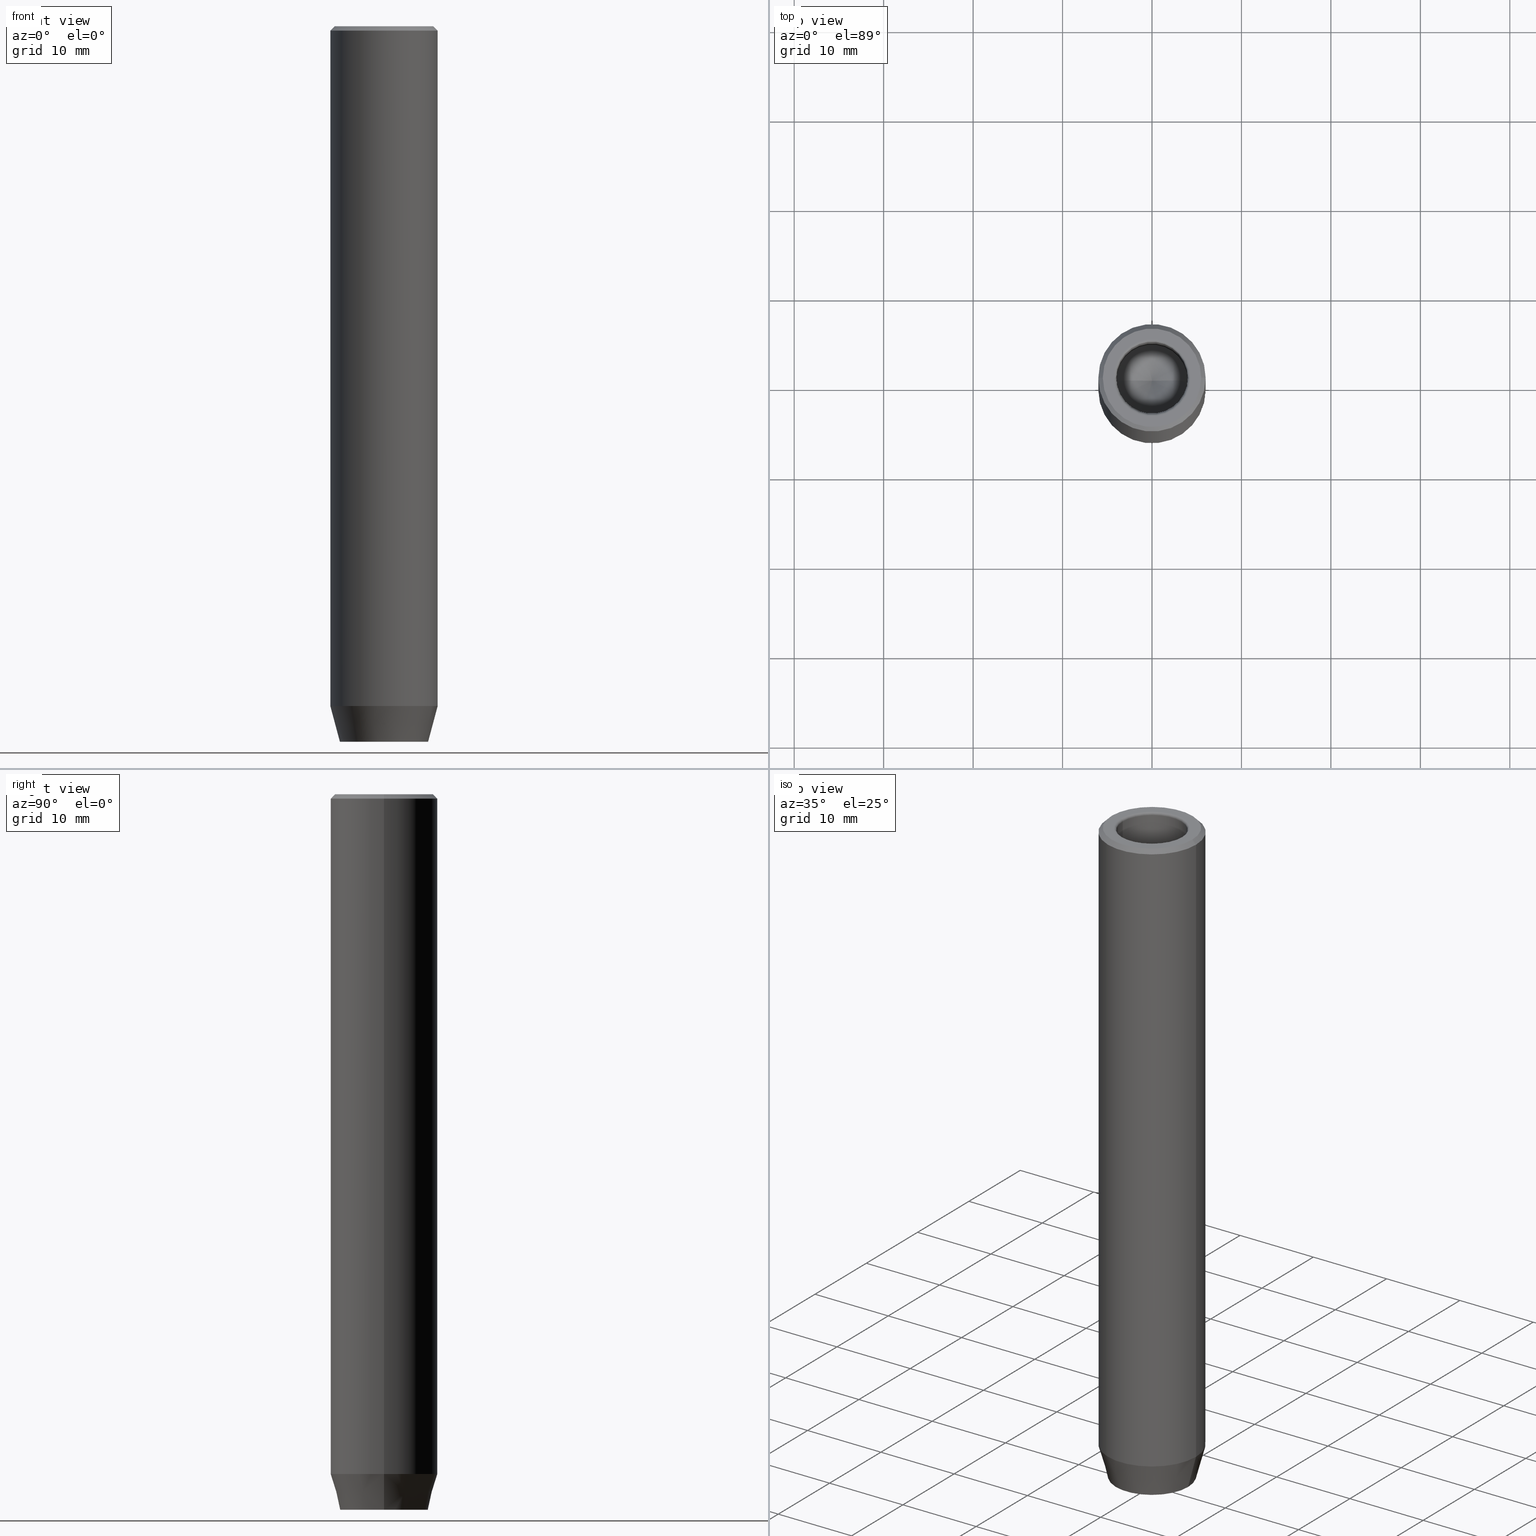
[diagram: canonical four-view strip — front | top / right | iso, engineering-drawing reading convention]
A machine part, canonical four-view strip (front | top / right | iso — engineering-drawing reading convention). The complete STEP part file that produces these views, byte-faithful:
ISO-10303-21;
HEADER;
FILE_DESCRIPTION (( 'STEP AP203' ),
    '1' );
FILE_NAME ('ed3b.STEP',
    '2024-01-02T19:12:21',
    ( '' ),
    ( '' ),
    'SwSTEP 2.0',
    'SolidWorks 2019',
    '' );
FILE_SCHEMA (( 'CONFIG_CONTROL_DESIGN' ));
ENDSEC;

DATA;
#1 = ADVANCED_FACE ( 'NONE', ( #124 ), #377, .F. ) ;
#2 = FACE_OUTER_BOUND ( 'NONE', #328, .T. ) ;
#3 = PLANE ( 'NONE',  #217 ) ;
#4 = ORIENTED_EDGE ( 'NONE', *, *, #563, .F. ) ;
#5 = AXIS2_PLACEMENT_3D ( 'NONE', #385, #585, #139 ) ;
#6 = DIRECTION ( 'NONE',  ( 0.000000000000000000, -1.000000000000000000, 0.000000000000000000 ) ) ;
#7 = VECTOR ( 'NONE', #312, 1000.000000000000000 ) ;
#8 = SHAPE_DEFINITION_REPRESENTATION ( #172, #609 ) ;
#9 = ORIENTED_EDGE ( 'NONE', *, *, #520, .T. ) ;
#10 = EDGE_CURVE ( 'NONE', #222, #114, #171, .T. ) ;
#11 = DIRECTION ( 'NONE',  ( 1.000000000000000000, 0.000000000000000000, 0.000000000000000000 ) ) ;
#12 = ORIENTED_EDGE ( 'NONE', *, *, #302, .F. ) ;
#13 = EDGE_CURVE ( 'NONE', #233, #463, #381, .T. ) ;
#14 = CARTESIAN_POINT ( 'NONE',  ( -4.299999999999996270, 5.265981236333614526E-16, -0.2999999999999999889 ) ) ;
#15 = VERTEX_POINT ( 'NONE', #477 ) ;
#16 = CIRCLE ( 'NONE', #324, 3.999999999999996447 ) ;
#17 = ORIENTED_EDGE ( 'NONE', *, *, #552, .T. ) ;
#18 = CARTESIAN_POINT ( 'NONE',  ( 2.499999999999999556, 0.000000000000000000, -80.00000000000001421 ) ) ;
#19 = LINE ( 'NONE', #23, #527 ) ;
#20 = ORIENTED_EDGE ( 'NONE', *, *, #71, .F. ) ;
#21 = PLANE ( 'NONE',  #428 ) ;
#22 = DIRECTION ( 'NONE',  ( -0.8660254037844387076, -0.5000000000000001110, 0.000000000000000000 ) ) ;
#23 = CARTESIAN_POINT ( 'NONE',  ( -1.250000000000000000, 2.165063509461097269, -80.00000000000001421 ) ) ;
#24 = VERTEX_POINT ( 'NONE', #623 ) ;
#25 = CARTESIAN_POINT ( 'NONE',  ( -6.000000000000000000, 7.347880794884119736E-16, -76.00000000000001421 ) ) ;
#26 = AXIS2_PLACEMENT_3D ( 'NONE', #350, #551, #554 ) ;
#27 = APPROVAL_PERSON_ORGANIZATION ( #282, #404, #92 ) ;
#28 = ORIENTED_EDGE ( 'NONE', *, *, #80, .T. ) ;
#29 = EDGE_CURVE ( 'NONE', #69, #275, #82, .T. ) ;
#30 =( LENGTH_UNIT ( ) NAMED_UNIT ( * ) SI_UNIT ( .MILLI., .METRE. ) );
#31 = EDGE_LOOP ( 'NONE', ( #359, #76, #556, #625 ) ) ;
#32 = CARTESIAN_POINT ( 'NONE',  ( 5.500000000000010658, 6.735557395310455828E-16, 0.000000000000000000 ) ) ;
#33 = EDGE_CURVE ( 'NONE', #463, #561, #263, .T. ) ;
#34 = VECTOR ( 'NONE', #517, 1000.000000000000114 ) ;
#35 = ORIENTED_EDGE ( 'NONE', *, *, #332, .T. ) ;
#36 = DIRECTION ( 'NONE',  ( -0.8660254037844387076, 0.4999999999999997780, 0.000000000000000000 ) ) ;
#37 = ORIENTED_EDGE ( 'NONE', *, *, #225, .T. ) ;
#38 = AXIS2_PLACEMENT_3D ( 'NONE', #59, #396, #295 ) ;
#39 = DIRECTION ( 'NONE',  ( 1.000000000000000000, 0.000000000000000000, 0.000000000000000000 ) ) ;
#40 = AXIS2_PLACEMENT_3D ( 'NONE', #188, #383, #583 ) ;
#41 = APPROVAL_ROLE ( '' ) ;
#42 = PLANE ( 'NONE',  #560 ) ;
#43 = DIRECTION ( 'NONE',  ( -0.000000000000000000, -0.000000000000000000, 1.000000000000000000 ) ) ;
#44 = CARTESIAN_POINT ( 'NONE',  ( -1.249999999999999334, -2.165063509461096825, -74.20000000000001705 ) ) ;
#45 = DIRECTION ( 'NONE',  ( 0.000000000000000000, 0.000000000000000000, -1.000000000000000000 ) ) ;
#46 = DIRECTION ( 'NONE',  ( 1.000000000000000000, 0.000000000000000000, 0.000000000000000000 ) ) ;
#47 = VECTOR ( 'NONE', #573, 1000.000000000000114 ) ;
#48 = APPLICATION_CONTEXT ( 'configuration controlled 3d designs of mechanical parts and assemblies' ) ;
#49 = DIRECTION ( 'NONE',  ( 1.000000000000000000, 0.000000000000000000, 0.000000000000000000 ) ) ;
#50 = CALENDAR_DATE ( 2024, 2, 1 ) ;
#51 = CARTESIAN_POINT ( 'NONE',  ( 0.000000000000000000, 0.000000000000000000, -17.00000000000000000 ) ) ;
#52 = CARTESIAN_POINT ( 'NONE',  ( 2.499999999999999556, 1.443375672974065216, -74.20000000000001705 ) ) ;
#53 = FACE_BOUND ( 'NONE', #450, .T. ) ;
#54 = ORIENTED_EDGE ( 'NONE', *, *, #10, .T. ) ;
#55 = AXIS2_PLACEMENT_3D ( 'NONE', #475, #575, #277 ) ;
#56 = CARTESIAN_POINT ( 'NONE',  ( -6.000000000000000000, 7.347880794884119736E-16, -0.4999999999999891753 ) ) ;
#57 = VERTEX_POINT ( 'NONE', #25 ) ;
#58 = LOCAL_TIME ( 20, 12, 21.00000000000000000, #194 ) ;
#59 = CARTESIAN_POINT ( 'NONE',  ( 0.000000000000000000, 0.000000000000000000, 0.000000000000000000 ) ) ;
#60 = VERTEX_POINT ( 'NONE', #465 ) ;
#61 = ORIENTED_EDGE ( 'NONE', *, *, #206, .T. ) ;
#62 = VECTOR ( 'NONE', #618, 999.9999999999998863 ) ;
#63 = CARTESIAN_POINT ( 'NONE',  ( 0.000000000000000000, 0.000000000000000000, -17.00000000000000000 ) ) ;
#64 = CARTESIAN_POINT ( 'NONE',  ( 2.499999999999999556, 1.443375672974065216, -74.20000000000001705 ) ) ;
#65 = EDGE_LOOP ( 'NONE', ( #414, #305, #9, #506 ) ) ;
#66 = DIRECTION ( 'NONE',  ( -0.000000000000000000, -0.000000000000000000, 1.000000000000000000 ) ) ;
#67 = VECTOR ( 'NONE', #304, 1000.000000000000000 ) ;
#68 = CYLINDRICAL_SURFACE ( 'NONE', #461, 3.999999999999996447 ) ;
#69 = VERTEX_POINT ( 'NONE', #267 ) ;
#70 = ORIENTED_EDGE ( 'NONE', *, *, #327, .F. ) ;
#71 = EDGE_CURVE ( 'NONE', #69, #132, #224, .T. ) ;
#72 = DIRECTION ( 'NONE',  ( -0.000000000000000000, -0.000000000000000000, 1.000000000000000000 ) ) ;
#73 = ORIENTED_EDGE ( 'NONE', *, *, #80, .F. ) ;
#74 = DIRECTION ( 'NONE',  ( -0.5000000000000000000, 0.8660254037844387076, 0.000000000000000000 ) ) ;
#75 = VECTOR ( 'NONE', #582, 1000.000000000000000 ) ;
#76 = ORIENTED_EDGE ( 'NONE', *, *, #624, .F. ) ;
#77 = CARTESIAN_POINT ( 'NONE',  ( -2.499999999999999556, 1.443375672974064994, -74.20000000000001705 ) ) ;
#78 = COORDINATED_UNIVERSAL_TIME_OFFSET ( 1, 0, .AHEAD. ) ;
#79 = DIRECTION ( 'NONE',  ( 0.000000000000000000, 0.000000000000000000, -1.000000000000000000 ) ) ;
#80 = EDGE_CURVE ( 'NONE', #278, #456, #106, .T. ) ;
#81 = EDGE_LOOP ( 'NONE', ( #353, #418, #534, #319 ) ) ;
#82 = LINE ( 'NONE', #620, #34 ) ;
#83 = VECTOR ( 'NONE', #36, 1000.000000000000114 ) ;
#84 = EDGE_LOOP ( 'NONE', ( #522, #367, #130, #379, #137, #401 ) ) ;
#85 = COORDINATED_UNIVERSAL_TIME_OFFSET ( 1, 0, .AHEAD. ) ;
#86 = CARTESIAN_POINT ( 'NONE',  ( 0.000000000000000000, 0.000000000000000000, -74.20000000000001705 ) ) ;
#87 = ADVANCED_FACE ( 'NONE', ( #372 ), #189, .T. ) ;
#88 = CIRCLE ( 'NONE', #280, 4.299999999999996270 ) ;
#89 = DIRECTION ( 'NONE',  ( 0.5000000000000001110, -0.8660254037844387076, 0.000000000000000000 ) ) ;
#90 = CARTESIAN_POINT ( 'NONE',  ( 0.000000000000000000, 0.000000000000000000, -0.2999999999999999889 ) ) ;
#91 = EDGE_CURVE ( 'NONE', #298, #57, #127, .T. ) ;
#92 = APPROVAL_ROLE ( '' ) ;
#93 = DIRECTION ( 'NONE',  ( -1.000000000000000000, 3.004629197474318063E-16, 0.000000000000000000 ) ) ;
#94 = DIRECTION ( 'NONE',  ( 0.000000000000000000, -1.000000000000000000, 0.000000000000000000 ) ) ;
#95 = EDGE_CURVE ( 'NONE', #157, #605, #231, .T. ) ;
#96 = VECTOR ( 'NONE', #441, 1000.000000000000000 ) ;
#97 = FACE_OUTER_BOUND ( 'NONE', #230, .T. ) ;
#98 = LINE ( 'NONE', #145, #432 ) ;
#99 = CARTESIAN_POINT ( 'NONE',  ( -2.500000000000000444, -1.443375672974064106, -74.20000000000001705 ) ) ;
#100 = CIRCLE ( 'NONE', #5, 3.999999999999996447 ) ;
#101 = CONICAL_SURFACE ( 'NONE', #168, 6.000000000000000000, 0.2617993877991491858 ) ;
#102 = FACE_OUTER_BOUND ( 'NONE', #158, .T. ) ;
#103 = APPROVAL_DATE_TIME ( #497, #636 ) ;
#104 = ORIENTED_EDGE ( 'NONE', *, *, #632, .F. ) ;
#105 = FACE_OUTER_BOUND ( 'NONE', #248, .T. ) ;
#106 = CIRCLE ( 'NONE', #621, 6.000000000000000000 ) ;
#107 = ORIENTED_EDGE ( 'NONE', *, *, #546, .T. ) ;
#108 = EDGE_CURVE ( 'NONE', #470, #619, #438, .T. ) ;
#109 = ADVANCED_FACE ( 'NONE', ( #425 ), #21, .F. ) ;
#110 = DIRECTION ( 'NONE',  ( 0.000000000000000000, 0.000000000000000000, -1.000000000000000000 ) ) ;
#111 = ORIENTED_EDGE ( 'NONE', *, *, #108, .F. ) ;
#112 = VECTOR ( 'NONE', #356, 1000.000000000000114 ) ;
#113 = DIRECTION ( 'NONE',  ( 1.000000000000000000, 0.000000000000000000, 0.000000000000000000 ) ) ;
#114 = VERTEX_POINT ( 'NONE', #120 ) ;
#115 = EDGE_CURVE ( 'NONE', #165, #163, #234, .T. ) ;
#116 = EDGE_LOOP ( 'NONE', ( #608, #185, #107 ) ) ;
#117 = VECTOR ( 'NONE', #274, 1000.000000000000000 ) ;
#118 = DIRECTION ( 'NONE',  ( -0.000000000000000000, -0.000000000000000000, 1.000000000000000000 ) ) ;
#119 = EDGE_LOOP ( 'NONE', ( #255, #61, #579, #412 ) ) ;
#120 = CARTESIAN_POINT ( 'NONE',  ( -2.499999999999999556, 1.443375672974064994, -80.00000000000001421 ) ) ;
#121 = VECTOR ( 'NONE', #565, 1000.000000000000000 ) ;
#122 = DIRECTION ( 'NONE',  ( 1.000000000000000000, 0.000000000000000000, 0.000000000000000000 ) ) ;
#123 = EDGE_LOOP ( 'NONE', ( #12, #507, #136, #213 ) ) ;
#124 = FACE_OUTER_BOUND ( 'NONE', #574, .T. ) ;
#125 = DIRECTION ( 'NONE',  ( -0.000000000000000000, -0.000000000000000000, 1.000000000000000000 ) ) ;
#126 = ORIENTED_EDGE ( 'NONE', *, *, #563, .T. ) ;
#127 = LINE ( 'NONE', #320, #595 ) ;
#128 = EDGE_CURVE ( 'NONE', #619, #278, #329, .T. ) ;
#129 = DIRECTION ( 'NONE',  ( 1.000000000000000000, 0.000000000000000000, 0.000000000000000000 ) ) ;
#130 = ORIENTED_EDGE ( 'NONE', *, *, #479, .T. ) ;
#131 = SECURITY_CLASSIFICATION_LEVEL ( 'unclassified' ) ;
#132 = VERTEX_POINT ( 'NONE', #514 ) ;
#133 = AXIS2_PLACEMENT_3D ( 'NONE', #361, #72, #272 ) ;
#134 = VECTOR ( 'NONE', #239, 1000.000000000000000 ) ;
#135 = ORIENTED_EDGE ( 'NONE', *, *, #302, .T. ) ;
#136 = ORIENTED_EDGE ( 'NONE', *, *, #256, .F. ) ;
#137 = ORIENTED_EDGE ( 'NONE', *, *, #33, .T. ) ;
#138 = ADVANCED_FACE ( 'NONE', ( #365 ), #308, .F. ) ;
#139 = DIRECTION ( 'NONE',  ( 1.000000000000000000, 0.000000000000000000, 0.000000000000000000 ) ) ;
#140 = COORDINATED_UNIVERSAL_TIME_OFFSET ( 1, 0, .AHEAD. ) ;
#141 = CARTESIAN_POINT ( 'NONE',  ( -2.500000000000000444, -1.443375672974064106, -80.00000000000001421 ) ) ;
#142 = CIRCLE ( 'NONE', #398, 4.928203230275509661 ) ;
#143 = DIRECTION ( 'NONE',  ( 0.000000000000000000, 0.000000000000000000, -1.000000000000000000 ) ) ;
#144 = CC_DESIGN_APPROVAL ( #636, ( #617 ) ) ;
#145 = CARTESIAN_POINT ( 'NONE',  ( -1.250000000000000000, 2.165063509461097269, -74.20000000000001705 ) ) ;
#146 = FACE_OUTER_BOUND ( 'NONE', #584, .T. ) ;
#147 = DIRECTION ( 'NONE',  ( 1.000000000000000000, 0.000000000000000000, -0.000000000000000000 ) ) ;
#148 = EDGE_CURVE ( 'NONE', #561, #222, #486, .T. ) ;
#149 = APPROVAL_STATUS ( 'not_yet_approved' ) ;
#150 = PLANE ( 'NONE',  #590 ) ;
#151 = CARTESIAN_POINT ( 'NONE',  ( 0.000000000000000000, 0.000000000000000000, 0.000000000000000000 ) ) ;
#152 = AXIS2_PLACEMENT_3D ( 'NONE', #196, #297, #294 ) ;
#153 = DIRECTION ( 'NONE',  ( -0.000000000000000000, -0.000000000000000000, 1.000000000000000000 ) ) ;
#154 = CARTESIAN_POINT ( 'NONE',  ( -1.249999999999999334, -2.165063509461096825, -80.00000000000001421 ) ) ;
#155 = EDGE_LOOP ( 'NONE', ( #616, #358, #603, #577 ) ) ;
#156 = DIRECTION ( 'NONE',  ( -0.000000000000000000, -0.000000000000000000, 1.000000000000000000 ) ) ;
#157 = VERTEX_POINT ( 'NONE', #635 ) ;
#158 = EDGE_LOOP ( 'NONE', ( #216, #530 ) ) ;
#159 = VECTOR ( 'NONE', #125, 1000.000000000000000 ) ;
#160 = EDGE_LOOP ( 'NONE', ( #467, #474, #258, #28 ) ) ;
#161 = CARTESIAN_POINT ( 'NONE',  ( -2.500000000000000000, 7.511572993685795156E-16, -80.00000000000001421 ) ) ;
#162 = EDGE_CURVE ( 'NONE', #15, #298, #204, .T. ) ;
#163 = VERTEX_POINT ( 'NONE', #292 ) ;
#164 = CARTESIAN_POINT ( 'NONE',  ( 0.000000000000000000, 0.000000000000000000, -76.00000000000001421 ) ) ;
#165 = VERTEX_POINT ( 'NONE', #549 ) ;
#166 = DIRECTION ( 'NONE',  ( -0.000000000000000000, -0.000000000000000000, -1.000000000000000000 ) ) ;
#167 = ADVANCED_FACE ( 'NONE', ( #391 ), #42, .F. ) ;
#168 = AXIS2_PLACEMENT_3D ( 'NONE', #164, #118, #460 ) ;
#169 = CARTESIAN_POINT ( 'NONE',  ( 3.999999999999996447, 0.000000000000000000, 0.000000000000000000 ) ) ;
#170 = ORIENTED_EDGE ( 'NONE', *, *, #479, .F. ) ;
#171 = LINE ( 'NONE', #77, #586 ) ;
#172 = PRODUCT_DEFINITION_SHAPE ( 'NONE', 'NONE',  #571 ) ;
#173 = ADVANCED_FACE ( 'NONE', ( #629 ), #150, .T. ) ;
#174 = ADVANCED_FACE ( 'NONE', ( #633 ), #191, .T. ) ;
#175 = APPLICATION_PROTOCOL_DEFINITION ( 'international standard', 'config_control_design', 1994, #48 ) ;
#176 = ADVANCED_FACE ( 'NONE', ( #146 ), #243, .F. ) ;
#177 = PERSON_AND_ORGANIZATION ( #343, #433 ) ;
#178 = DIRECTION ( 'NONE',  ( 1.000000000000000000, 0.000000000000000000, 0.000000000000000000 ) ) ;
#179 = PERSON_AND_ORGANIZATION_ROLE ( 'design_owner' ) ;
#180 = CARTESIAN_POINT ( 'NONE',  ( 0.000000000000000000, 0.000000000000000000, -0.4999999999999891753 ) ) ;
#181 = VECTOR ( 'NONE', #246, 1000.000000000000000 ) ;
#182 = ORIENTED_EDGE ( 'NONE', *, *, #521, .T. ) ;
#183 = ADVANCED_FACE ( 'NONE', ( #345 ), #286, .F. ) ;
#184 = DIRECTION ( 'NONE',  ( 1.000000000000000000, 0.000000000000000000, 0.000000000000000000 ) ) ;
#185 = ORIENTED_EDGE ( 'NONE', *, *, #95, .T. ) ;
#186 = CALENDAR_DATE ( 2024, 2, 1 ) ;
#187 = DIRECTION ( 'NONE',  ( -0.000000000000000000, -0.000000000000000000, -1.000000000000000000 ) ) ;
#188 = CARTESIAN_POINT ( 'NONE',  ( 0.000000000000000000, 0.000000000000000000, 0.000000000000000000 ) ) ;
#189 = TOROIDAL_SURFACE ( 'NONE', #55, 4.299999999999996270, 0.2999999999999999889 ) ;
#190 = CALENDAR_DATE ( 2024, 2, 1 ) ;
#191 = CYLINDRICAL_SURFACE ( 'NONE', #227, 6.000000000000000000 ) ;
#192 = DIRECTION ( 'NONE',  ( -1.000000000000000000, 0.000000000000000000, 0.000000000000000000 ) ) ;
#193 = CIRCLE ( 'NONE', #455, 5.500000000000010658 ) ;
#194 = COORDINATED_UNIVERSAL_TIME_OFFSET ( 1, 0, .AHEAD. ) ;
#195 = DIRECTION ( 'NONE',  ( 1.000000000000000000, 0.000000000000000000, 0.000000000000000000 ) ) ;
#196 = CARTESIAN_POINT ( 'NONE',  ( 0.000000000000000000, 0.000000000000000000, -76.00000000000001421 ) ) ;
#197 = DATE_AND_TIME ( #50, #58 ) ;
#198 = DIRECTION ( 'NONE',  ( -0.000000000000000000, -0.000000000000000000, 1.000000000000000000 ) ) ;
#199 = CC_DESIGN_PERSON_AND_ORGANIZATION_ASSIGNMENT ( #285, #440, ( #253 ) ) ;
#200 = DIRECTION ( 'NONE',  ( -0.8571673007021118895, 1.049727191138618079E-16, 0.5150380749100549327 ) ) ;
#201 = PERSON_AND_ORGANIZATION ( #343, #433 ) ;
#202 = DIRECTION ( 'NONE',  ( 1.000000000000000000, 0.000000000000000000, 0.000000000000000000 ) ) ;
#203 = DIRECTION ( 'NONE',  ( -1.000000000000000000, 0.000000000000000000, 0.000000000000000000 ) ) ;
#204 = CIRCLE ( 'NONE', #347, 4.928203230275509661 ) ;
#205 = LINE ( 'NONE', #154, #112 ) ;
#206 = EDGE_CURVE ( 'NONE', #57, #456, #589, .T. ) ;
#207 = AXIS2_PLACEMENT_3D ( 'NONE', #496, #6, #448 ) ;
#208 = VECTOR ( 'NONE', #22, 999.9999999999998863 ) ;
#209 = VERTEX_POINT ( 'NONE', #488 ) ;
#210 = DIRECTION ( 'NONE',  ( 1.000000000000000000, 0.000000000000000000, 0.000000000000000000 ) ) ;
#211 = ORIENTED_EDGE ( 'NONE', *, *, #558, .F. ) ;
#212 = VECTOR ( 'NONE', #431, 1000.000000000000114 ) ;
#213 = ORIENTED_EDGE ( 'NONE', *, *, #520, .F. ) ;
#214 = DIRECTION ( 'NONE',  ( 1.224646799147353207E-16, 1.000000000000000000, 0.000000000000000000 ) ) ;
#215 = CARTESIAN_POINT ( 'NONE',  ( -4.928203230275509661, 6.691594553194334567E-16, -80.00000000000001421 ) ) ;
#216 = ORIENTED_EDGE ( 'NONE', *, *, #162, .F. ) ;
#217 = AXIS2_PLACEMENT_3D ( 'NONE', #512, #411, #122 ) ;
#218 = LINE ( 'NONE', #576, #47 ) ;
#219 = ORIENTED_EDGE ( 'NONE', *, *, #283, .F. ) ;
#220 = CARTESIAN_POINT ( 'NONE',  ( 5.500000000000010658, 7.041719095097287782E-16, 0.000000000000000000 ) ) ;
#221 = FACE_OUTER_BOUND ( 'NONE', #65, .T. ) ;
#222 = VERTEX_POINT ( 'NONE', #339 ) ;
#223 = CARTESIAN_POINT ( 'NONE',  ( 0.000000000000000000, 0.000000000000000000, 0.000000000000000000 ) ) ;
#224 = LINE ( 'NONE', #419, #537 ) ;
#225 = EDGE_CURVE ( 'NONE', #561, #322, #495, .T. ) ;
#226 = AXIS2_PLACEMENT_3D ( 'NONE', #494, #43, #210 ) ;
#227 = AXIS2_PLACEMENT_3D ( 'NONE', #594, #592, #536 ) ;
#228 = VERTEX_POINT ( 'NONE', #342 ) ;
#229 = CARTESIAN_POINT ( 'NONE',  ( 0.000000000000000000, 0.000000000000000000, 0.000000000000000000 ) ) ;
#230 = EDGE_LOOP ( 'NONE', ( #513, #559, #459 ) ) ;
#231 = LINE ( 'NONE', #523, #75 ) ;
#232 = ADVANCED_FACE ( 'NONE', ( #97 ), #382, .F. ) ;
#233 = VERTEX_POINT ( 'NONE', #279 ) ;
#234 = LINE ( 'NONE', #528, #117 ) ;
#235 = CIRCLE ( 'NONE', #38, 4.299999999999996270 ) ;
#236 = LOCAL_TIME ( 20, 12, 21.00000000000000000, #85 ) ;
#237 = ORIENTED_EDGE ( 'NONE', *, *, #250, .F. ) ;
#238 = CARTESIAN_POINT ( 'NONE',  ( 0.000000000000000000, 0.000000000000000000, -80.00000000000001421 ) ) ;
#239 = DIRECTION ( 'NONE',  ( -0.000000000000000000, -0.000000000000000000, -1.000000000000000000 ) ) ;
#240 = ADVANCED_FACE ( 'NONE', ( #393 ), #493, .F. ) ;
#241 = DIRECTION ( 'NONE',  ( 0.8660254037844385966, 0.4999999999999998890, 0.000000000000000000 ) ) ;
#242 = TOROIDAL_SURFACE ( 'NONE', #133, 4.299999999999996270, 0.2999999999999999889 ) ;
#243 = PLANE ( 'NONE',  #442 ) ;
#244 = DIRECTION ( 'NONE',  ( 1.000000000000000000, 0.000000000000000000, 0.000000000000000000 ) ) ;
#245 = CARTESIAN_POINT ( 'NONE',  ( 0.000000000000000000, 0.000000000000000000, -17.00000000000000000 ) ) ;
#246 = DIRECTION ( 'NONE',  ( -0.000000000000000000, -0.000000000000000000, -1.000000000000000000 ) ) ;
#247 = FACE_OUTER_BOUND ( 'NONE', #569, .T. ) ;
#248 = EDGE_LOOP ( 'NONE', ( #296, #375, #237, #553 ) ) ;
#249 = LINE ( 'NONE', #604, #485 ) ;
#250 = EDGE_CURVE ( 'NONE', #456, #278, #336, .T. ) ;
#251 = DIRECTION ( 'NONE',  ( -0.000000000000000000, -0.000000000000000000, 1.000000000000000000 ) ) ;
#252 = AXIS2_PLACEMENT_3D ( 'NONE', #473, #153, #244 ) ;
#253 = PRODUCT_DEFINITION_FORMATION_WITH_SPECIFIED_SOURCE ( 'LIBOVOLN�', '', #480, .NOT_KNOWN. ) ;
#254 = ORIENTED_EDGE ( 'NONE', *, *, #624, .T. ) ;
#255 = ORIENTED_EDGE ( 'NONE', *, *, #293, .T. ) ;
#256 = EDGE_CURVE ( 'NONE', #24, #163, #100, .T. ) ;
#257 = DIRECTION ( 'NONE',  ( 3.004629197474318063E-16, 1.000000000000000000, 0.000000000000000000 ) ) ;
#258 = ORIENTED_EDGE ( 'NONE', *, *, #607, .T. ) ;
#259 = CARTESIAN_POINT ( 'NONE',  ( 0.000000000000000000, 0.000000000000000000, 0.000000000000000000 ) ) ;
#260 = ORIENTED_EDGE ( 'NONE', *, *, #293, .F. ) ;
#261 = CONICAL_SURFACE ( 'NONE', #626, 5.500000000000010658, 0.7853981633974482790 ) ;
#262 = DIRECTION ( 'NONE',  ( 1.000000000000000000, 0.000000000000000000, 0.000000000000000000 ) ) ;
#263 = LINE ( 'NONE', #532, #83 ) ;
#264 = CARTESIAN_POINT ( 'NONE',  ( 1.249999999999999778, -2.165063509461096380, -80.00000000000001421 ) ) ;
#265 = DIRECTION ( 'NONE',  ( 1.000000000000000000, 0.000000000000000000, 0.000000000000000000 ) ) ;
#266 = ORIENTED_EDGE ( 'NONE', *, *, #300, .T. ) ;
#267 = CARTESIAN_POINT ( 'NONE',  ( 0.000000000000000000, 2.886751345948129543, -74.20000000000001705 ) ) ;
#268 = ORIENTED_EDGE ( 'NONE', *, *, #327, .T. ) ;
#269 = DIRECTION ( 'NONE',  ( 1.000000000000000000, 0.000000000000000000, 0.000000000000000000 ) ) ;
#270 = CIRCLE ( 'NONE', #637, 6.000000000000000000 ) ;
#271 = AXIS2_PLACEMENT_3D ( 'NONE', #63, #606, #113 ) ;
#272 = DIRECTION ( 'NONE',  ( 1.000000000000000000, 0.000000000000000000, 0.000000000000000000 ) ) ;
#273 = ORIENTED_EDGE ( 'NONE', *, *, #91, .T. ) ;
#274 = DIRECTION ( 'NONE',  ( -0.000000000000000000, -0.000000000000000000, 1.000000000000000000 ) ) ;
#275 = VERTEX_POINT ( 'NONE', #64 ) ;
#276 = DATE_AND_TIME ( #190, #462 ) ;
#277 = DIRECTION ( 'NONE',  ( 1.000000000000000000, 0.000000000000000000, 0.000000000000000000 ) ) ;
#278 = VERTEX_POINT ( 'NONE', #409 ) ;
#279 = CARTESIAN_POINT ( 'NONE',  ( 2.499999999999999556, -1.443375672974064550, -74.20000000000001705 ) ) ;
#280 = AXIS2_PLACEMENT_3D ( 'NONE', #259, #110, #202 ) ;
#281 = VECTOR ( 'NONE', #257, 1000.000000000000000 ) ;
#282 = PERSON_AND_ORGANIZATION ( #343, #433 ) ;
#283 = EDGE_CURVE ( 'NONE', #60, #322, #205, .T. ) ;
#284 = CARTESIAN_POINT ( 'NONE',  ( 2.499999999999999556, -1.443375672974064550, -74.20000000000001705 ) ) ;
#285 = PERSON_AND_ORGANIZATION ( #343, #433 ) ;
#286 = PLANE ( 'NONE',  #389 ) ;
#287 = LINE ( 'NONE', #402, #568 ) ;
#288 = DIRECTION ( 'NONE',  ( -0.000000000000000000, -0.000000000000000000, 1.000000000000000000 ) ) ;
#289 = LINE ( 'NONE', #446, #454 ) ;
#290 = CONICAL_SURFACE ( 'NONE', #252, 6.000000000000000000, 0.2617993877991491858 ) ;
#291 = PERSON_AND_ORGANIZATION ( #343, #433 ) ;
#292 = CARTESIAN_POINT ( 'NONE',  ( -3.999999999999996447, 4.898587196589408884E-16, -0.2999999999999999889 ) ) ;
#293 = EDGE_CURVE ( 'NONE', #564, #57, #270, .T. ) ;
#294 = DIRECTION ( 'NONE',  ( 1.000000000000000000, 0.000000000000000000, 0.000000000000000000 ) ) ;
#295 = DIRECTION ( 'NONE',  ( 1.000000000000000000, 0.000000000000000000, 0.000000000000000000 ) ) ;
#296 = ORIENTED_EDGE ( 'NONE', *, *, #552, .F. ) ;
#297 = DIRECTION ( 'NONE',  ( -0.000000000000000000, -0.000000000000000000, 1.000000000000000000 ) ) ;
#298 = VERTEX_POINT ( 'NONE', #215 ) ;
#299 = PERSON_AND_ORGANIZATION_ROLE ( 'classification_officer' ) ;
#300 = EDGE_CURVE ( 'NONE', #481, #307, #88, .T. ) ;
#301 = CIRCLE ( 'NONE', #471, 3.999999999999995559 ) ;
#302 = EDGE_CURVE ( 'NONE', #307, #481, #235, .T. ) ;
#303 = ORIENTED_EDGE ( 'NONE', *, *, #108, .T. ) ;
#304 = DIRECTION ( 'NONE',  ( 0.000000000000000000, -1.000000000000000000, 0.000000000000000000 ) ) ;
#305 = ORIENTED_EDGE ( 'NONE', *, *, #300, .F. ) ;
#306 = ORIENTED_EDGE ( 'NONE', *, *, #598, .F. ) ;
#307 = VERTEX_POINT ( 'NONE', #498 ) ;
#308 = CYLINDRICAL_SURFACE ( 'NONE', #484, 3.999999999999996447 ) ;
#309 = AXIS2_PLACEMENT_3D ( 'NONE', #245, #447, #39 ) ;
#310 = ADVANCED_FACE ( 'NONE', ( #53, #247 ), #3, .T. ) ;
#311 =( GEOMETRIC_REPRESENTATION_CONTEXT ( 3 ) GLOBAL_UNCERTAINTY_ASSIGNED_CONTEXT ( ( #360 ) ) GLOBAL_UNIT_ASSIGNED_CONTEXT ( ( #30, #325, #478 ) ) REPRESENTATION_CONTEXT ( 'NONE', 'WORKASPACE' ) );
#312 = DIRECTION ( 'NONE',  ( -0.000000000000000000, -0.000000000000000000, -1.000000000000000000 ) ) ;
#313 = ORIENTED_EDGE ( 'NONE', *, *, #256, .T. ) ;
#314 = EDGE_CURVE ( 'NONE', #298, #15, #142, .T. ) ;
#315 = EDGE_LOOP ( 'NONE', ( #424, #211, #170, #410 ) ) ;
#316 = ADVANCED_FACE ( 'NONE', ( #221 ), #242, .T. ) ;
#317 = ADVANCED_FACE ( 'NONE', ( #335 ), #68, .F. ) ;
#318 = LINE ( 'NONE', #374, #121 ) ;
#319 = ORIENTED_EDGE ( 'NONE', *, *, #469, .F. ) ;
#320 = CARTESIAN_POINT ( 'NONE',  ( -6.000000000000000000, 7.347880794884119736E-16, -76.00000000000001421 ) ) ;
#321 = DIRECTION ( 'NONE',  ( -0.000000000000000000, -0.000000000000000000, 1.000000000000000000 ) ) ;
#322 = VERTEX_POINT ( 'NONE', #141 ) ;
#323 = DIRECTION ( 'NONE',  ( -0.8660254037844385966, 0.4999999999999998890, 0.000000000000000000 ) ) ;
#324 = AXIS2_PLACEMENT_3D ( 'NONE', #90, #321, #265 ) ;
#325 =( NAMED_UNIT ( * ) PLANE_ANGLE_UNIT ( ) SI_UNIT ( $, .RADIAN. ) );
#326 = VECTOR ( 'NONE', #66, 1000.000000000000000 ) ;
#327 = EDGE_CURVE ( 'NONE', #605, #24, #417, .T. ) ;
#328 = EDGE_LOOP ( 'NONE', ( #464, #111, #182, #73 ) ) ;
#329 = LINE ( 'NONE', #32, #212 ) ;
#330 = ORIENTED_EDGE ( 'NONE', *, *, #546, .F. ) ;
#331 = DIRECTION ( 'NONE',  ( 1.000000000000000000, 0.000000000000000000, 0.000000000000000000 ) ) ;
#332 = EDGE_CURVE ( 'NONE', #163, #24, #16, .T. ) ;
#333 = CARTESIAN_POINT ( 'NONE',  ( -2.500000000000000000, 7.511572993685795156E-16, -74.20000000000001705 ) ) ;
#334 = CC_DESIGN_PERSON_AND_ORGANIZATION_ASSIGNMENT ( #177, #380, ( #571 ) ) ;
#335 = FACE_OUTER_BOUND ( 'NONE', #371, .T. ) ;
#336 = CIRCLE ( 'NONE', #539, 6.000000000000000000 ) ;
#337 = CIRCLE ( 'NONE', #271, 3.999999999999995559 ) ;
#338 = PERSON_AND_ORGANIZATION ( #343, #433 ) ;
#339 = CARTESIAN_POINT ( 'NONE',  ( -2.499999999999999556, 1.443375672974064994, -74.20000000000001705 ) ) ;
#340 = CARTESIAN_POINT ( 'NONE',  ( 4.299999999999996270, 0.000000000000000000, 0.000000000000000000 ) ) ;
#341 = CALENDAR_DATE ( 2024, 2, 1 ) ;
#342 = CARTESIAN_POINT ( 'NONE',  ( 2.499999999999999556, -1.443375672974064550, -80.00000000000001421 ) ) ;
#343 = PERSON ( 'NEUR�EN�', 'NEUR�EN�', 'NEUR�EN�', ('NEUR�EN�'), ('NEUR�EN�'), ('NEUR�EN�') ) ;
#344 = FACE_BOUND ( 'NONE', #366, .T. ) ;
#345 = FACE_OUTER_BOUND ( 'NONE', #407, .T. ) ;
#346 = DIRECTION ( 'NONE',  ( -0.000000000000000000, -0.000000000000000000, 1.000000000000000000 ) ) ;
#347 = AXIS2_PLACEMENT_3D ( 'NONE', #238, #538, #195 ) ;
#348 = LOCAL_TIME ( 20, 12, 21.00000000000000000, #399 ) ;
#349 = CARTESIAN_POINT ( 'NONE',  ( 0.000000000000000000, 0.000000000000000000, -76.00000000000001421 ) ) ;
#350 = CARTESIAN_POINT ( 'NONE',  ( 0.000000000000000000, 4.928203230275509661, -80.00000000000001421 ) ) ;
#351 = ORIENTED_EDGE ( 'NONE', *, *, #115, .F. ) ;
#352 = EDGE_CURVE ( 'NONE', #114, #132, #19, .T. ) ;
#353 = ORIENTED_EDGE ( 'NONE', *, *, #91, .F. ) ;
#354 = EDGE_CURVE ( 'NONE', #132, #209, #218, .T. ) ;
#355 = VECTOR ( 'NONE', #187, 1000.000000000000000 ) ;
#356 = DIRECTION ( 'NONE',  ( -0.8660254037844387076, 0.4999999999999997780, 0.000000000000000000 ) ) ;
#357 = APPROVAL_PERSON_ORGANIZATION ( #338, #453, #41 ) ;
#358 = ORIENTED_EDGE ( 'NONE', *, *, #422, .F. ) ;
#359 = ORIENTED_EDGE ( 'NONE', *, *, #632, .T. ) ;
#360 = UNCERTAINTY_MEASURE_WITH_UNIT (LENGTH_MEASURE( 1.000000000000000082E-05 ), #30, 'distance_accuracy_value', 'NONE');
#361 = CARTESIAN_POINT ( 'NONE',  ( 0.000000000000000000, 0.000000000000000000, -0.2999999999999999889 ) ) ;
#362 = EDGE_CURVE ( 'NONE', #15, #564, #318, .T. ) ;
#363 = AXIS2_PLACEMENT_3D ( 'NONE', #468, #74, #566 ) ;
#364 = ADVANCED_FACE ( 'NONE', ( #524 ), #290, .T. ) ;
#365 = FACE_OUTER_BOUND ( 'NONE', #499, .T. ) ;
#366 = EDGE_LOOP ( 'NONE', ( #434, #4, #219, #104, #306, #628 ) ) ;
#367 = ORIENTED_EDGE ( 'NONE', *, *, #29, .T. ) ;
#368 = CIRCLE ( 'NONE', #207, 0.2999999999999999889 ) ;
#369 = CC_DESIGN_APPROVAL ( #453, ( #571 ) ) ;
#370 = ADVANCED_FACE ( 'NONE', ( #344, #102 ), #596, .T. ) ;
#371 = EDGE_LOOP ( 'NONE', ( #351, #330, #268, #313 ) ) ;
#372 = FACE_OUTER_BOUND ( 'NONE', #123, .T. ) ;
#373 = MECHANICAL_CONTEXT ( 'NONE', #48, 'mechanical' ) ;
#374 = CARTESIAN_POINT ( 'NONE',  ( 6.000000000000000000, 0.000000000000000000, -76.00000000000001421 ) ) ;
#375 = ORIENTED_EDGE ( 'NONE', *, *, #128, .T. ) ;
#376 = PERSON_AND_ORGANIZATION_ROLE ( 'design_supplier' ) ;
#377 = PLANE ( 'NONE',  #363 ) ;
#378 = AXIS2_PLACEMENT_3D ( 'NONE', #229, #627, #178 ) ;
#379 = ORIENTED_EDGE ( 'NONE', *, *, #13, .T. ) ;
#380 = PERSON_AND_ORGANIZATION_ROLE ( 'creator' ) ;
#381 = LINE ( 'NONE', #427, #62 ) ;
#382 = CONICAL_SURFACE ( 'NONE', #581, 3.999999999999995559, 1.029744258676653645 ) ;
#383 = DIRECTION ( 'NONE',  ( 0.000000000000000000, 0.000000000000000000, 1.000000000000000000 ) ) ;
#384 = APPROVAL_DATE_TIME ( #542, #453 ) ;
#385 = CARTESIAN_POINT ( 'NONE',  ( 0.000000000000000000, 0.000000000000000000, -0.2999999999999999889 ) ) ;
#386 = CARTESIAN_POINT ( 'NONE',  ( 0.000000000000000000, 0.000000000000000000, -0.4999999999999891753 ) ) ;
#387 = DIRECTION ( 'NONE',  ( -0.000000000000000000, -0.000000000000000000, 1.000000000000000000 ) ) ;
#388 = DIRECTION ( 'NONE',  ( 0.8660254037844387076, -0.4999999999999998335, 0.000000000000000000 ) ) ;
#389 = AXIS2_PLACEMENT_3D ( 'NONE', #44, #492, #388 ) ;
#390 = LINE ( 'NONE', #284, #134 ) ;
#391 = FACE_OUTER_BOUND ( 'NONE', #31, .T. ) ;
#392 = CARTESIAN_POINT ( 'NONE',  ( -5.500000000000010658, 0.000000000000000000, 0.000000000000000000 ) ) ;
#393 = FACE_OUTER_BOUND ( 'NONE', #116, .T. ) ;
#394 = CARTESIAN_POINT ( 'NONE',  ( 0.000000000000000000, 0.000000000000000000, 0.000000000000000000 ) ) ;
#395 = ADVANCED_FACE ( 'NONE', ( #105 ), #261, .T. ) ;
#396 = DIRECTION ( 'NONE',  ( 0.000000000000000000, 0.000000000000000000, -1.000000000000000000 ) ) ;
#397 = FACE_OUTER_BOUND ( 'NONE', #119, .T. ) ;
#398 = AXIS2_PLACEMENT_3D ( 'NONE', #436, #387, #262 ) ;
#399 = COORDINATED_UNIVERSAL_TIME_OFFSET ( 1, 0, .AHEAD. ) ;
#400 = CC_DESIGN_APPROVAL ( #404, ( #253 ) ) ;
#401 = ORIENTED_EDGE ( 'NONE', *, *, #148, .T. ) ;
#402 = CARTESIAN_POINT ( 'NONE',  ( -5.500000000000010658, 0.000000000000000000, 0.000000000000000000 ) ) ;
#403 = APPROVAL_ROLE ( '' ) ;
#404 = APPROVAL ( #631, 'NEUR�EN�' ) ;
#405 = ORIENTED_EDGE ( 'NONE', *, *, #225, .F. ) ;
#406 = CARTESIAN_POINT ( 'NONE',  ( 3.999999999999995559, 0.000000000000000000, -17.00000000000000000 ) ) ;
#407 = EDGE_LOOP ( 'NONE', ( #429, #405, #426, #254 ) ) ;
#408 = FACE_OUTER_BOUND ( 'NONE', #81, .T. ) ;
#409 = CARTESIAN_POINT ( 'NONE',  ( 6.000000000000000000, 0.000000000000000000, -0.4999999999999891753 ) ) ;
#410 = ORIENTED_EDGE ( 'NONE', *, *, #422, .T. ) ;
#411 = DIRECTION ( 'NONE',  ( 0.000000000000000000, -0.000000000000000000, 1.000000000000000000 ) ) ;
#412 = ORIENTED_EDGE ( 'NONE', *, *, #607, .F. ) ;
#413 = LINE ( 'NONE', #614, #7 ) ;
#414 = ORIENTED_EDGE ( 'NONE', *, *, #602, .F. ) ;
#415 = CARTESIAN_POINT ( 'NONE',  ( 1.250000000000000222, 2.165063509461097269, -74.20000000000001705 ) ) ;
#416 = LINE ( 'NONE', #457, #326 ) ;
#417 = LINE ( 'NONE', #169, #159 ) ;
#418 = ORIENTED_EDGE ( 'NONE', *, *, #314, .T. ) ;
#419 = CARTESIAN_POINT ( 'NONE',  ( 0.000000000000000000, 2.886751345948129543, -74.20000000000001705 ) ) ;
#420 = CONICAL_SURFACE ( 'NONE', #502, 5.500000000000010658, 0.7853981633974482790 ) ;
#421 = CIRCLE ( 'NONE', #570, 0.2999999999999999334 ) ;
#422 = EDGE_CURVE ( 'NONE', #275, #209, #443, .T. ) ;
#423 = CARTESIAN_POINT ( 'NONE',  ( 0.000000000000000000, 0.000000000000000000, 0.000000000000000000 ) ) ;
#424 = ORIENTED_EDGE ( 'NONE', *, *, #598, .T. ) ;
#425 = FACE_OUTER_BOUND ( 'NONE', #155, .T. ) ;
#426 = ORIENTED_EDGE ( 'NONE', *, *, #33, .F. ) ;
#427 = CARTESIAN_POINT ( 'NONE',  ( 1.249999999999999778, -2.165063509461096380, -74.20000000000001705 ) ) ;
#428 = AXIS2_PLACEMENT_3D ( 'NONE', #415, #578, #323 ) ;
#429 = ORIENTED_EDGE ( 'NONE', *, *, #283, .T. ) ;
#430 = APPROVAL_STATUS ( 'not_yet_approved' ) ;
#431 = DIRECTION ( 'NONE',  ( 0.7071067811865474617, 8.659560562354932858E-17, -0.7071067811865474617 ) ) ;
#432 = VECTOR ( 'NONE', #241, 1000.000000000000227 ) ;
#433 = ORGANIZATION ( 'NEUR�EN�', 'NEUR�EN�', '' ) ;
#434 = ORIENTED_EDGE ( 'NONE', *, *, #352, .F. ) ;
#435 = DATE_TIME_ROLE ( 'creation_date' ) ;
#436 = CARTESIAN_POINT ( 'NONE',  ( 0.000000000000000000, 0.000000000000000000, -80.00000000000001421 ) ) ;
#437 = DIRECTION ( 'NONE',  ( 0.8660254037844385966, 0.5000000000000000000, 0.000000000000000000 ) ) ;
#438 = CIRCLE ( 'NONE', #378, 5.500000000000010658 ) ;
#439 = CARTESIAN_POINT ( 'NONE',  ( 0.000000000000000000, 0.000000000000000000, -17.00000000000000000 ) ) ;
#440 = PERSON_AND_ORGANIZATION_ROLE ( 'creator' ) ;
#441 = DIRECTION ( 'NONE',  ( 3.004629197474318063E-16, 1.000000000000000000, 0.000000000000000000 ) ) ;
#442 = AXIS2_PLACEMENT_3D ( 'NONE', #547, #93, #444 ) ;
#443 = LINE ( 'NONE', #52, #181 ) ;
#444 = DIRECTION ( 'NONE',  ( -3.004629197474318063E-16, -1.000000000000000000, 0.000000000000000000 ) ) ;
#445 = CC_DESIGN_PERSON_AND_ORGANIZATION_ASSIGNMENT ( #291, #299, ( #617 ) ) ;
#446 = CARTESIAN_POINT ( 'NONE',  ( -3.999999999999995559, 4.898587196589407898E-16, -17.00000000000000000 ) ) ;
#447 = DIRECTION ( 'NONE',  ( -0.000000000000000000, -0.000000000000000000, 1.000000000000000000 ) ) ;
#448 = DIRECTION ( 'NONE',  ( 0.000000000000000000, 0.000000000000000000, -1.000000000000000000 ) ) ;
#449 = EDGE_CURVE ( 'NONE', #222, #69, #98, .T. ) ;
#450 = EDGE_LOOP ( 'NONE', ( #266, #135 ) ) ;
#451 = CC_DESIGN_PERSON_AND_ORGANIZATION_ASSIGNMENT ( #531, #376, ( #253 ) ) ;
#452 = DIRECTION ( 'NONE',  ( -0.000000000000000000, 0.000000000000000000, -1.000000000000000000 ) ) ;
#453 = APPROVAL ( #430, 'NEUR�EN�' ) ;
#454 = VECTOR ( 'NONE', #200, 1000.000000000000000 ) ;
#455 = AXIS2_PLACEMENT_3D ( 'NONE', #394, #346, #557 ) ;
#456 = VERTEX_POINT ( 'NONE', #56 ) ;
#457 = CARTESIAN_POINT ( 'NONE',  ( 6.000000000000000000, 0.000000000000000000, 0.000000000000000000 ) ) ;
#458 = ORIENTED_EDGE ( 'NONE', *, *, #115, .T. ) ;
#459 = ORIENTED_EDGE ( 'NONE', *, *, #588, .T. ) ;
#460 = DIRECTION ( 'NONE',  ( 1.000000000000000000, 0.000000000000000000, 0.000000000000000000 ) ) ;
#461 = AXIS2_PLACEMENT_3D ( 'NONE', #423, #630, #129 ) ;
#462 = LOCAL_TIME ( 20, 12, 21.00000000000000000, #78 ) ;
#463 = VERTEX_POINT ( 'NONE', #487 ) ;
#464 = ORIENTED_EDGE ( 'NONE', *, *, #128, .F. ) ;
#465 = CARTESIAN_POINT ( 'NONE',  ( 6.505213034913026604E-16, -2.886751345948127767, -80.00000000000001421 ) ) ;
#466 = CLOSED_SHELL ( 'NONE', ( #87, #138, #232, #395, #364, #543, #370, #310, #174, #597, #541, #240, #317, #316, #1, #176, #183, #167, #490, #109, #173 ) ) ;
#467 = ORIENTED_EDGE ( 'NONE', *, *, #206, .F. ) ;
#468 = CARTESIAN_POINT ( 'NONE',  ( -1.250000000000000000, 2.165063509461097269, -74.20000000000001705 ) ) ;
#469 = EDGE_CURVE ( 'NONE', #57, #564, #504, .T. ) ;
#470 = VERTEX_POINT ( 'NONE', #392 ) ;
#471 = AXIS2_PLACEMENT_3D ( 'NONE', #439, #156, #49 ) ;
#472 = DIRECTION ( 'NONE',  ( -0.2588190451025205174, 3.169619151431761860E-17, 0.9659258262890684232 ) ) ;
#473 = CARTESIAN_POINT ( 'NONE',  ( 0.000000000000000000, 0.000000000000000000, -76.00000000000001421 ) ) ;
#474 = ORIENTED_EDGE ( 'NONE', *, *, #469, .T. ) ;
#475 = CARTESIAN_POINT ( 'NONE',  ( 0.000000000000000000, 0.000000000000000000, -0.2999999999999999889 ) ) ;
#476 = ORIENTED_EDGE ( 'NONE', *, *, #362, .F. ) ;
#477 = CARTESIAN_POINT ( 'NONE',  ( 4.928203230275509661, 0.000000000000000000, -80.00000000000001421 ) ) ;
#478 =( NAMED_UNIT ( * ) SI_UNIT ( $, .STERADIAN. ) SOLID_ANGLE_UNIT ( ) );
#479 = EDGE_CURVE ( 'NONE', #275, #233, #249, .T. ) ;
#480 = PRODUCT ( 'ed3b', 'ed3b', '', ( #373 ) ) ;
#481 = VERTEX_POINT ( 'NONE', #340 ) ;
#482 = DATE_AND_TIME ( #186, #540 ) ;
#483 = DIRECTION ( 'NONE',  ( 0.000000000000000000, 0.000000000000000000, -1.000000000000000000 ) ) ;
#484 = AXIS2_PLACEMENT_3D ( 'NONE', #223, #615, #331 ) ;
#485 = VECTOR ( 'NONE', #94, 1000.000000000000000 ) ;
#486 = LINE ( 'NONE', #333, #96 ) ;
#487 = CARTESIAN_POINT ( 'NONE',  ( 6.505213034913026604E-16, -2.886751345948127767, -74.20000000000001705 ) ) ;
#488 = CARTESIAN_POINT ( 'NONE',  ( 2.499999999999999556, 1.443375672974065216, -80.00000000000001421 ) ) ;
#489 = DIRECTION ( 'NONE',  ( 0.000000000000000000, 0.000000000000000000, -1.000000000000000000 ) ) ;
#490 = ADVANCED_FACE ( 'NONE', ( #638 ), #593, .F. ) ;
#491 = CC_DESIGN_DATE_AND_TIME_ASSIGNMENT ( #197, #555, ( #617 ) ) ;
#492 = DIRECTION ( 'NONE',  ( -0.4999999999999998335, -0.8660254037844387076, 0.000000000000000000 ) ) ;
#493 = CONICAL_SURFACE ( 'NONE', #309, 3.999999999999995559, 1.029744258676653645 ) ;
#494 = CARTESIAN_POINT ( 'NONE',  ( 0.000000000000000000, 0.000000000000000000, 0.000000000000000000 ) ) ;
#495 = LINE ( 'NONE', #99, #355 ) ;
#496 = CARTESIAN_POINT ( 'NONE',  ( 4.299999999999996270, 0.000000000000000000, -0.2999999999999999889 ) ) ;
#497 = DATE_AND_TIME ( #341, #348 ) ;
#498 = CARTESIAN_POINT ( 'NONE',  ( -4.299999999999996270, 5.265981236333614526E-16, 0.000000000000000000 ) ) ;
#499 = EDGE_LOOP ( 'NONE', ( #525, #458, #35, #70 ) ) ;
#500 = CARTESIAN_POINT ( 'NONE',  ( 0.000000000000000000, 0.000000000000000000, 0.000000000000000000 ) ) ;
#501 = EDGE_LOOP ( 'NONE', ( #613, #273, #260, #476 ) ) ;
#502 = AXIS2_PLACEMENT_3D ( 'NONE', #151, #45, #203 ) ;
#503 = APPLICATION_CONTEXT ( 'configuration controlled 3d designs of mechanical parts and assemblies' ) ;
#504 = CIRCLE ( 'NONE', #152, 6.000000000000000000 ) ;
#505 = CC_DESIGN_SECURITY_CLASSIFICATION ( #617, ( #253 ) ) ;
#506 = ORIENTED_EDGE ( 'NONE', *, *, #332, .F. ) ;
#507 = ORIENTED_EDGE ( 'NONE', *, *, #602, .T. ) ;
#508 = ORIENTED_EDGE ( 'NONE', *, *, #148, .F. ) ;
#509 = LINE ( 'NONE', #18, #67 ) ;
#510 = DESIGN_CONTEXT ( 'detailed design', #503, 'design' ) ;
#511 = AXIS2_PLACEMENT_3D ( 'NONE', #634, #147, #452 ) ;
#512 = CARTESIAN_POINT ( 'NONE',  ( 0.000000000000000000, 0.000000000000000000, 0.000000000000000000 ) ) ;
#513 = ORIENTED_EDGE ( 'NONE', *, *, #95, .F. ) ;
#514 = CARTESIAN_POINT ( 'NONE',  ( 1.084202172485504434E-16, 2.886751345948129543, -80.00000000000001421 ) ) ;
#515 = LINE ( 'NONE', #264, #208 ) ;
#516 = ORIENTED_EDGE ( 'NONE', *, *, #10, .F. ) ;
#517 = DIRECTION ( 'NONE',  ( 0.8660254037844385966, -0.4999999999999999445, 0.000000000000000000 ) ) ;
#518 = PERSON_AND_ORGANIZATION ( #343, #433 ) ;
#519 = CC_DESIGN_DATE_AND_TIME_ASSIGNMENT ( #482, #435, ( #571 ) ) ;
#520 = EDGE_CURVE ( 'NONE', #481, #24, #368, .T. ) ;
#521 = EDGE_CURVE ( 'NONE', #470, #456, #287, .T. ) ;
#522 = ORIENTED_EDGE ( 'NONE', *, *, #449, .T. ) ;
#523 = CARTESIAN_POINT ( 'NONE',  ( 3.999999999999995559, 0.000000000000000000, -17.00000000000000000 ) ) ;
#524 = FACE_OUTER_BOUND ( 'NONE', #501, .T. ) ;
#525 = ORIENTED_EDGE ( 'NONE', *, *, #588, .F. ) ;
#526 = CALENDAR_DATE ( 2024, 2, 1 ) ;
#527 = VECTOR ( 'NONE', #612, 1000.000000000000227 ) ;
#528 = CARTESIAN_POINT ( 'NONE',  ( -3.999999999999996447, 4.898587196589408884E-16, 0.000000000000000000 ) ) ;
#529 = APPROVAL_PERSON_ORGANIZATION ( #201, #636, #403 ) ;
#530 = ORIENTED_EDGE ( 'NONE', *, *, #314, .F. ) ;
#531 = PERSON_AND_ORGANIZATION ( #343, #433 ) ;
#532 = CARTESIAN_POINT ( 'NONE',  ( -1.249999999999999334, -2.165063509461096825, -74.20000000000001705 ) ) ;
#533 = EDGE_CURVE ( 'NONE', #157, #165, #289, .T. ) ;
#534 = ORIENTED_EDGE ( 'NONE', *, *, #362, .T. ) ;
#535 = APPLICATION_PROTOCOL_DEFINITION ( 'international standard', 'config_control_design', 1994, #503 ) ;
#536 = DIRECTION ( 'NONE',  ( 1.000000000000000000, 0.000000000000000000, 0.000000000000000000 ) ) ;
#537 = VECTOR ( 'NONE', #572, 1000.000000000000000 ) ;
#538 = DIRECTION ( 'NONE',  ( -0.000000000000000000, -0.000000000000000000, 1.000000000000000000 ) ) ;
#539 = AXIS2_PLACEMENT_3D ( 'NONE', #386, #483, #184 ) ;
#540 = LOCAL_TIME ( 20, 12, 21.00000000000000000, #140 ) ;
#541 = ADVANCED_FACE ( 'NONE', ( #2 ), #420, .T. ) ;
#542 = DATE_AND_TIME ( #526, #236 ) ;
#543 = ADVANCED_FACE ( 'NONE', ( #397 ), #599, .T. ) ;
#544 = CARTESIAN_POINT ( 'NONE',  ( 1.249999999999999778, -2.165063509461096380, -74.20000000000001705 ) ) ;
#545 = LINE ( 'NONE', #161, #281 ) ;
#546 = EDGE_CURVE ( 'NONE', #605, #165, #301, .T. ) ;
#547 = CARTESIAN_POINT ( 'NONE',  ( -2.500000000000000000, 7.511572993685795156E-16, -74.20000000000001705 ) ) ;
#548 = DIRECTION ( 'NONE',  ( -0.7071067811865474617, 0.000000000000000000, -0.7071067811865474617 ) ) ;
#549 = CARTESIAN_POINT ( 'NONE',  ( -3.999999999999995559, 4.898587196589407898E-16, -17.00000000000000000 ) ) ;
#550 = VECTOR ( 'NONE', #198, 1000.000000000000000 ) ;
#551 = DIRECTION ( 'NONE',  ( 0.000000000000000000, 0.000000000000000000, -1.000000000000000000 ) ) ;
#552 = EDGE_CURVE ( 'NONE', #619, #470, #193, .T. ) ;
#553 = ORIENTED_EDGE ( 'NONE', *, *, #521, .F. ) ;
#554 = DIRECTION ( 'NONE',  ( -1.000000000000000000, 0.000000000000000000, -0.000000000000000000 ) ) ;
#555 = DATE_TIME_ROLE ( 'classification_date' ) ;
#556 = ORIENTED_EDGE ( 'NONE', *, *, #13, .F. ) ;
#557 = DIRECTION ( 'NONE',  ( 1.000000000000000000, 0.000000000000000000, 0.000000000000000000 ) ) ;
#558 = EDGE_CURVE ( 'NONE', #233, #228, #390, .T. ) ;
#559 = ORIENTED_EDGE ( 'NONE', *, *, #533, .T. ) ;
#560 = AXIS2_PLACEMENT_3D ( 'NONE', #544, #89, #437 ) ;
#561 = VERTEX_POINT ( 'NONE', #591 ) ;
#562 = CARTESIAN_POINT ( 'NONE',  ( 6.000000000000000000, 0.000000000000000000, -76.00000000000001421 ) ) ;
#563 = EDGE_CURVE ( 'NONE', #322, #114, #545, .T. ) ;
#564 = VERTEX_POINT ( 'NONE', #562 ) ;
#565 = DIRECTION ( 'NONE',  ( 0.2588190451025205174, 0.000000000000000000, 0.9659258262890684232 ) ) ;
#566 = DIRECTION ( 'NONE',  ( -0.8660254037844385966, -0.4999999999999999445, 0.000000000000000000 ) ) ;
#567 = DIRECTION ( 'NONE',  ( -1.000000000000000000, 1.224646799147353207E-16, 0.000000000000000000 ) ) ;
#568 = VECTOR ( 'NONE', #548, 1000.000000000000114 ) ;
#569 = EDGE_LOOP ( 'NONE', ( #303, #17 ) ) ;
#570 = AXIS2_PLACEMENT_3D ( 'NONE', #14, #214, #567 ) ;
#571 = PRODUCT_DEFINITION ( 'NEZN�M�', '', #253, #510 ) ;
#572 = DIRECTION ( 'NONE',  ( -0.000000000000000000, -0.000000000000000000, -1.000000000000000000 ) ) ;
#573 = DIRECTION ( 'NONE',  ( 0.8660254037844385966, -0.4999999999999999445, 0.000000000000000000 ) ) ;
#574 = EDGE_LOOP ( 'NONE', ( #611, #20, #622, #54 ) ) ;
#575 = DIRECTION ( 'NONE',  ( -0.000000000000000000, -0.000000000000000000, 1.000000000000000000 ) ) ;
#576 = CARTESIAN_POINT ( 'NONE',  ( 1.250000000000000222, 2.165063509461097269, -80.00000000000001421 ) ) ;
#577 = ORIENTED_EDGE ( 'NONE', *, *, #71, .T. ) ;
#578 = DIRECTION ( 'NONE',  ( 0.4999999999999999445, 0.8660254037844387076, -0.000000000000000000 ) ) ;
#579 = ORIENTED_EDGE ( 'NONE', *, *, #250, .T. ) ;
#580 = APPROVAL_DATE_TIME ( #276, #404 ) ;
#581 = AXIS2_PLACEMENT_3D ( 'NONE', #51, #288, #46 ) ;
#582 = DIRECTION ( 'NONE',  ( 0.8571673007021118895, 0.000000000000000000, 0.5150380749100549327 ) ) ;
#583 = DIRECTION ( 'NONE',  ( 1.000000000000000000, 0.000000000000000000, 0.000000000000000000 ) ) ;
#584 = EDGE_LOOP ( 'NONE', ( #126, #516, #508, #37 ) ) ;
#585 = DIRECTION ( 'NONE',  ( -0.000000000000000000, -0.000000000000000000, 1.000000000000000000 ) ) ;
#586 = VECTOR ( 'NONE', #166, 1000.000000000000000 ) ;
#587 = DIRECTION ( 'NONE',  ( -1.000000000000000000, 0.000000000000000000, -0.000000000000000000 ) ) ;
#588 = EDGE_CURVE ( 'NONE', #165, #605, #337, .T. ) ;
#589 = LINE ( 'NONE', #639, #550 ) ;
#590 = AXIS2_PLACEMENT_3D ( 'NONE', #86, #143, #587 ) ;
#591 = CARTESIAN_POINT ( 'NONE',  ( -2.500000000000000444, -1.443375672974064106, -74.20000000000001705 ) ) ;
#592 = DIRECTION ( 'NONE',  ( -0.000000000000000000, -0.000000000000000000, 1.000000000000000000 ) ) ;
#593 = PLANE ( 'NONE',  #511 ) ;
#594 = CARTESIAN_POINT ( 'NONE',  ( 0.000000000000000000, 0.000000000000000000, 0.000000000000000000 ) ) ;
#595 = VECTOR ( 'NONE', #472, 1000.000000000000000 ) ;
#596 = PLANE ( 'NONE',  #26 ) ;
#597 = ADVANCED_FACE ( 'NONE', ( #408 ), #101, .T. ) ;
#598 = EDGE_CURVE ( 'NONE', #209, #228, #509, .T. ) ;
#599 = CYLINDRICAL_SURFACE ( 'NONE', #226, 6.000000000000000000 ) ;
#600 = CC_DESIGN_PERSON_AND_ORGANIZATION_ASSIGNMENT ( #518, #179, ( #480 ) ) ;
#601 = PRODUCT_RELATED_PRODUCT_CATEGORY ( 'detail', '', ( #480 ) ) ;
#602 = EDGE_CURVE ( 'NONE', #307, #163, #421, .T. ) ;
#603 = ORIENTED_EDGE ( 'NONE', *, *, #29, .F. ) ;
#604 = CARTESIAN_POINT ( 'NONE',  ( 2.499999999999999556, 0.000000000000000000, -74.20000000000001705 ) ) ;
#605 = VERTEX_POINT ( 'NONE', #406 ) ;
#606 = DIRECTION ( 'NONE',  ( -0.000000000000000000, -0.000000000000000000, 1.000000000000000000 ) ) ;
#607 = EDGE_CURVE ( 'NONE', #564, #278, #416, .T. ) ;
#608 = ORIENTED_EDGE ( 'NONE', *, *, #533, .F. ) ;
#609 = ADVANCED_BREP_SHAPE_REPRESENTATION ( 'ed3b', ( #610, #40 ), #311 ) ;
#610 = MANIFOLD_SOLID_BREP ( 'Odebrat vysunut�m1', #466 ) ;
#611 = ORIENTED_EDGE ( 'NONE', *, *, #352, .T. ) ;
#612 = DIRECTION ( 'NONE',  ( 0.8660254037844385966, 0.4999999999999998890, 0.000000000000000000 ) ) ;
#613 = ORIENTED_EDGE ( 'NONE', *, *, #162, .T. ) ;
#614 = CARTESIAN_POINT ( 'NONE',  ( 6.505213034913026604E-16, -2.886751345948127767, -74.20000000000001705 ) ) ;
#615 = DIRECTION ( 'NONE',  ( -0.000000000000000000, -0.000000000000000000, 1.000000000000000000 ) ) ;
#616 = ORIENTED_EDGE ( 'NONE', *, *, #354, .T. ) ;
#617 = SECURITY_CLASSIFICATION ( '', '', #131 ) ;
#618 = DIRECTION ( 'NONE',  ( -0.8660254037844387076, -0.5000000000000001110, 0.000000000000000000 ) ) ;
#619 = VERTEX_POINT ( 'NONE', #220 ) ;
#620 = CARTESIAN_POINT ( 'NONE',  ( 1.250000000000000222, 2.165063509461097269, -74.20000000000001705 ) ) ;
#621 = AXIS2_PLACEMENT_3D ( 'NONE', #180, #79, #269 ) ;
#622 = ORIENTED_EDGE ( 'NONE', *, *, #449, .F. ) ;
#623 = CARTESIAN_POINT ( 'NONE',  ( 3.999999999999996447, 0.000000000000000000, -0.2999999999999999889 ) ) ;
#624 = EDGE_CURVE ( 'NONE', #463, #60, #413, .T. ) ;
#625 = ORIENTED_EDGE ( 'NONE', *, *, #558, .T. ) ;
#626 = AXIS2_PLACEMENT_3D ( 'NONE', #500, #489, #192 ) ;
#627 = DIRECTION ( 'NONE',  ( -0.000000000000000000, -0.000000000000000000, 1.000000000000000000 ) ) ;
#628 = ORIENTED_EDGE ( 'NONE', *, *, #354, .F. ) ;
#629 = FACE_OUTER_BOUND ( 'NONE', #84, .T. ) ;
#630 = DIRECTION ( 'NONE',  ( -0.000000000000000000, -0.000000000000000000, 1.000000000000000000 ) ) ;
#631 = APPROVAL_STATUS ( 'not_yet_approved' ) ;
#632 = EDGE_CURVE ( 'NONE', #228, #60, #515, .T. ) ;
#633 = FACE_OUTER_BOUND ( 'NONE', #160, .T. ) ;
#634 = CARTESIAN_POINT ( 'NONE',  ( 2.499999999999999556, 0.000000000000000000, -74.20000000000001705 ) ) ;
#635 = CARTESIAN_POINT ( 'NONE',  ( -4.827031923828040939E-15, 0.000000000000000000, -19.40344247611024286 ) ) ;
#636 = APPROVAL ( #149, 'NEUR�EN�' ) ;
#637 = AXIS2_PLACEMENT_3D ( 'NONE', #349, #251, #11 ) ;
#638 = FACE_OUTER_BOUND ( 'NONE', #315, .T. ) ;
#639 = CARTESIAN_POINT ( 'NONE',  ( -6.000000000000000000, 7.347880794884119736E-16, 0.000000000000000000 ) ) ;
ENDSEC;
END-ISO-10303-21;
